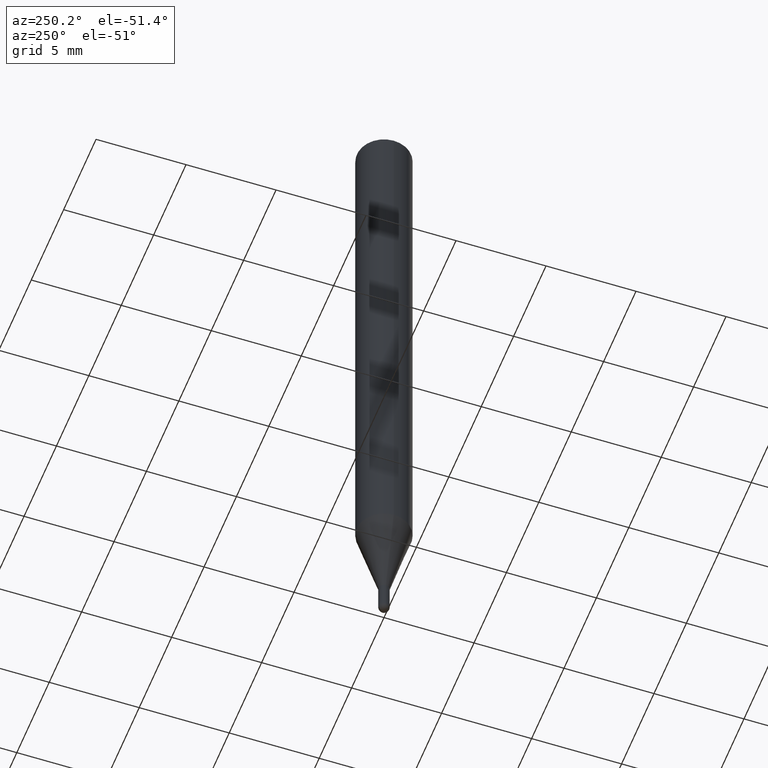
[diagram: clean part render]
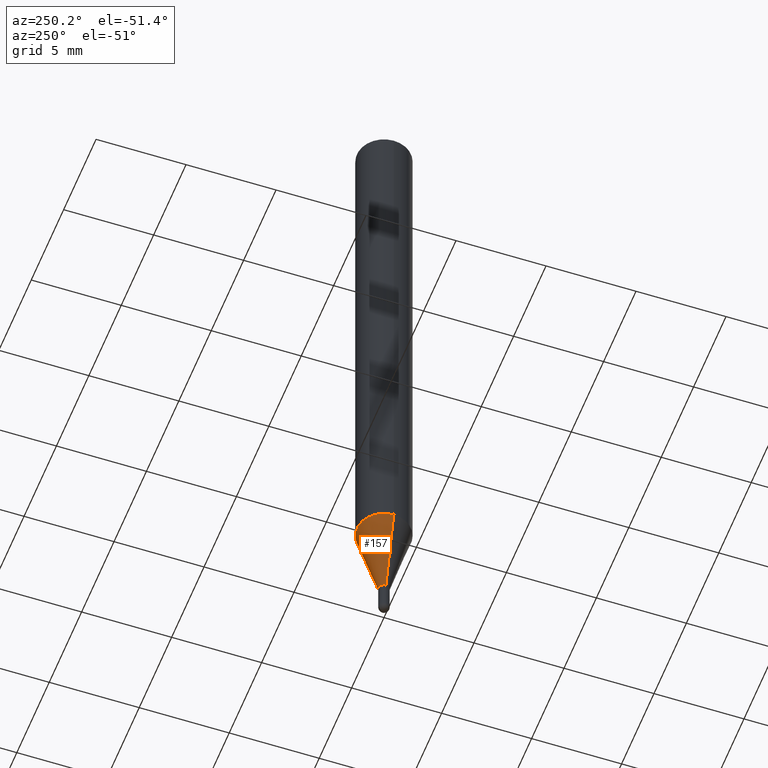
[diagram: same view with one face highlighted and labeled with its STEP entity id]
A machine part, auxiliary view. The second image highlights one B-rep face of the part: STEP entity #157.
In plain terms, the highlighted conical surface has half-angle 15 deg.
Its self-contained STEP definition (entity closure, byte-faithful):
#7 = DIRECTION ( 'NONE',  ( -0.2588190451025286776, 5.211531920934595218E-15, 0.9659258262890662028 ) ) ;
#24 = LINE ( 'NONE', #485, #286 ) ;
#26 = CIRCLE ( 'NONE', #316, 0.01179999999999965278 ) ;
#33 = DIRECTION ( 'NONE',  ( -2.445468806185136597E-29, 3.491481338843145583E-15, 1.000000000000000000 ) ) ;
#46 = VERTEX_POINT ( 'NONE', #250 ) ;
#53 = ORIENTED_EDGE ( 'NONE', *, *, #70, .F. ) ;
#59 = CONICAL_SURFACE ( 'NONE', #279, 0.01179999999999965278, 0.2617993877991576235 ) ;
#70 = EDGE_CURVE ( 'NONE', #114, #229, #24, .T. ) ;
#71 = CARTESIAN_POINT ( 'NONE',  ( 3.485282142575056435E-29, -4.976059204119250988E-15, -1.425199999999999800 ) ) ;
#114 = VERTEX_POINT ( 'NONE', #467 ) ;
#115 = DIRECTION ( 'NONE',  ( -2.445468806185136597E-29, 3.491481338843145583E-15, 1.000000000000000000 ) ) ;
#148 = VERTEX_POINT ( 'NONE', #381 ) ;
#157 = ADVANCED_FACE ( 'NONE', ( #302 ), #59, .T. ) ;
#159 = EDGE_CURVE ( 'NONE', #229, #148, #486, .T. ) ;
#170 = EDGE_CURVE ( 'NONE', #46, #148, #474, .T. ) ;
#176 = DIRECTION ( 'NONE',  ( 0.2588190451025286776, 1.565188264969564184E-15, 0.9659258262890662028 ) ) ;
#182 = DIRECTION ( 'NONE',  ( 1.000000000000000000, -6.982962677686258033E-15, 0.000000000000000000 ) ) ;
#227 = EDGE_CURVE ( 'NONE', #114, #46, #26, .T. ) ;
#229 = VERTEX_POINT ( 'NONE', #313 ) ;
#230 = VECTOR ( 'NONE', #7, 39.37007874015748143 ) ;
#250 = CARTESIAN_POINT ( 'NONE',  ( -0.01179999999999965278, -4.416506576626794755E-15, -1.425199999999999800 ) ) ;
#278 = CARTESIAN_POINT ( 'NONE',  ( -0.01179999999999965278, -4.892215161299561300E-15, -1.425199999999999800 ) ) ;
#279 = AXIS2_PLACEMENT_3D ( 'NONE', #505, #33, #182 ) ;
#286 = VECTOR ( 'NONE', #176, 39.37007874015748143 ) ;
#298 = ORIENTED_EDGE ( 'NONE', *, *, #159, .F. ) ;
#302 = FACE_OUTER_BOUND ( 'NONE', #465, .T. ) ;
#313 = CARTESIAN_POINT ( 'NONE',  ( 0.05904999999999999138, -4.772717423537742623E-15, -1.248860599342374922 ) ) ;
#316 = AXIS2_PLACEMENT_3D ( 'NONE', #71, #115, #511 ) ;
#346 = CARTESIAN_POINT ( 'NONE',  ( 3.054049638965451471E-29, -4.360373477420368492E-15, -1.248860599342374922 ) ) ;
#381 = CARTESIAN_POINT ( 'NONE',  ( -0.05904999999999999138, -3.940797991954028999E-15, -1.248860599342374922 ) ) ;
#459 = DIRECTION ( 'NONE',  ( 1.000000000000000000, -6.982962677686265133E-15, 0.000000000000000000 ) ) ;
#463 = DIRECTION ( 'NONE',  ( -2.445468806185136597E-29, 3.491481338843145583E-15, 1.000000000000000000 ) ) ;
#465 = EDGE_LOOP ( 'NONE', ( #475, #468, #298, #53 ) ) ;
#467 = CARTESIAN_POINT ( 'NONE',  ( 0.01179999999999965278, -5.058458163715945956E-15, -1.425199999999999800 ) ) ;
#468 = ORIENTED_EDGE ( 'NONE', *, *, #170, .T. ) ;
#474 = LINE ( 'NONE', #278, #230 ) ;
#475 = ORIENTED_EDGE ( 'NONE', *, *, #227, .T. ) ;
#485 = CARTESIAN_POINT ( 'NONE',  ( 0.01179999999999965278, -5.058458163715945956E-15, -1.425199999999999800 ) ) ;
#486 = CIRCLE ( 'NONE', #506, 0.05904999999999999832 ) ;
#505 = CARTESIAN_POINT ( 'NONE',  ( 3.485282142575056435E-29, -4.976059204119250988E-15, -1.425199999999999800 ) ) ;
#506 = AXIS2_PLACEMENT_3D ( 'NONE', #346, #463, #459 ) ;
#511 = DIRECTION ( 'NONE',  ( 1.000000000000000000, -6.982962677686258033E-15, 0.000000000000000000 ) ) ;